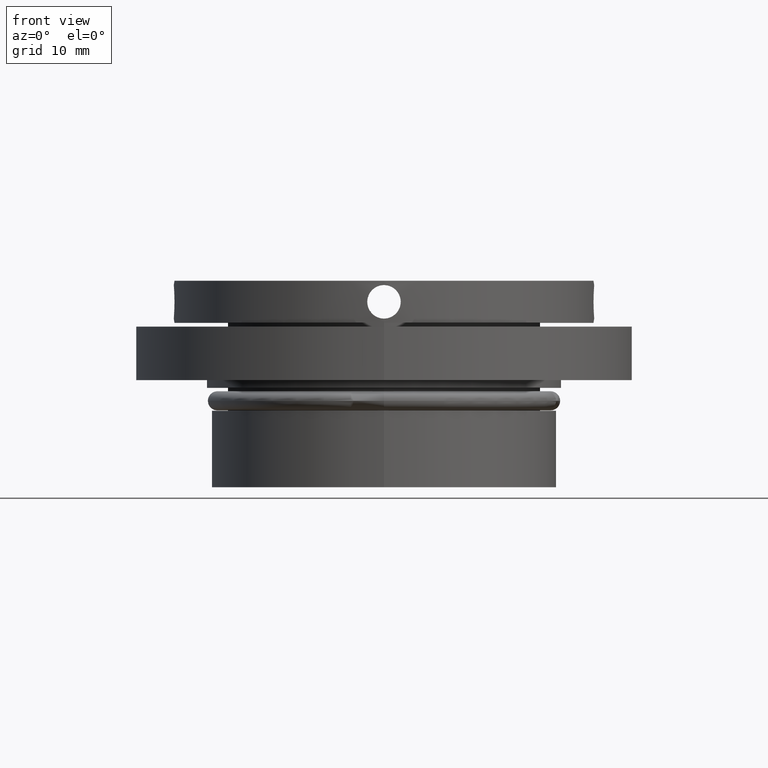
[diagram: clean part render]
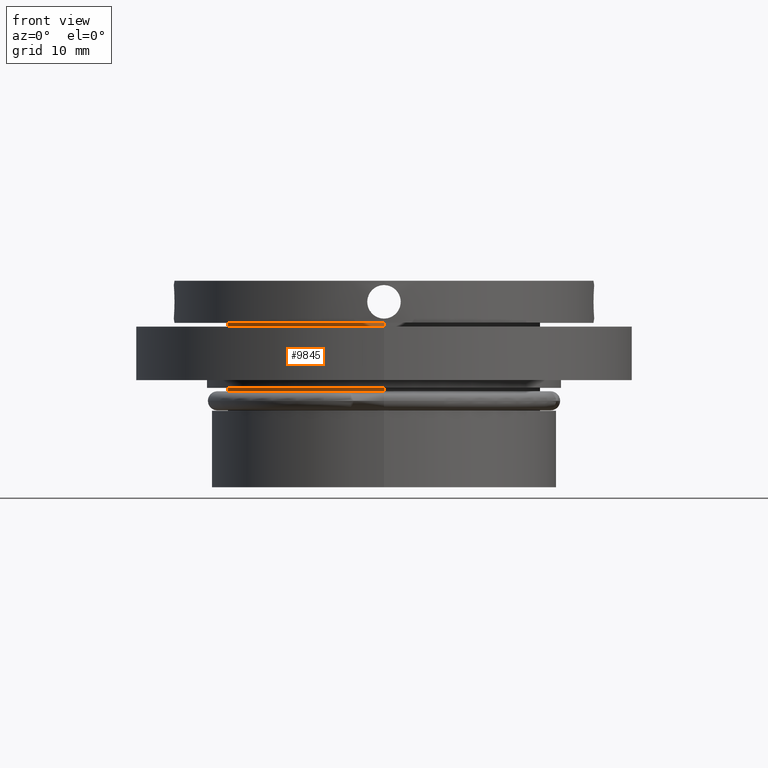
[diagram: same view with one face highlighted and labeled with its STEP entity id]
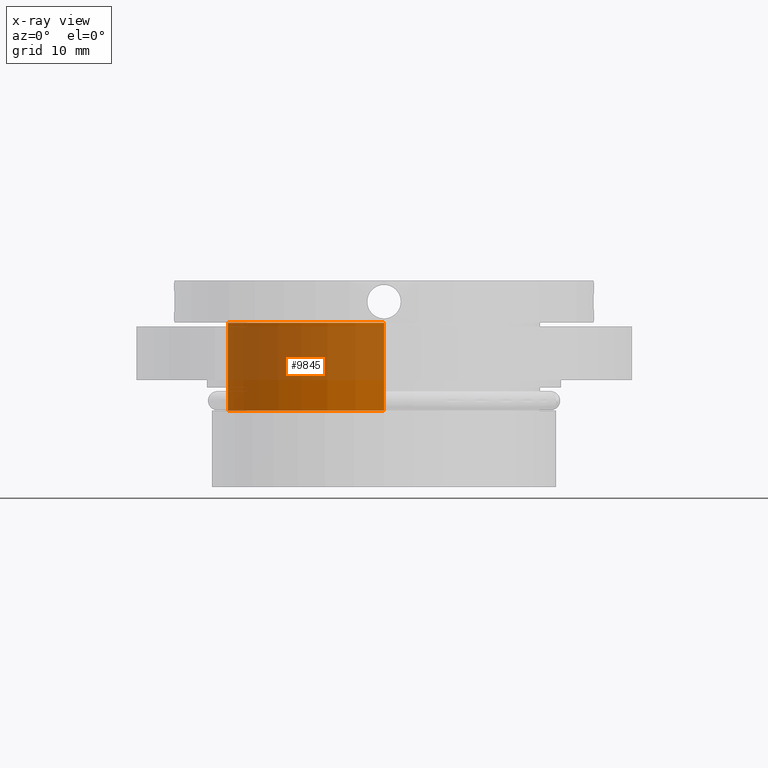
[diagram: x-ray of the same camera — body ghosted, the highlighted face saturated]
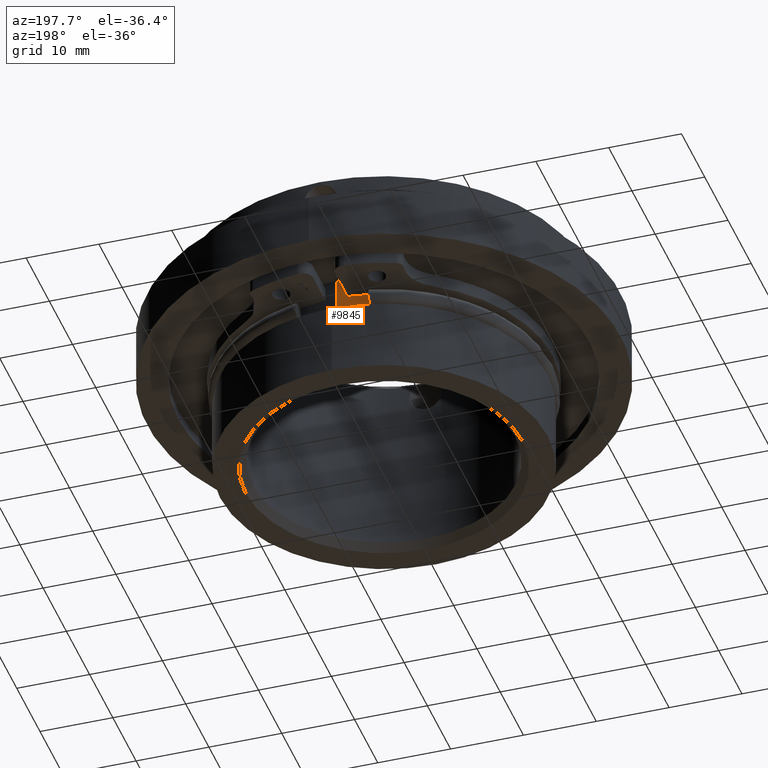
[diagram: same view with one face highlighted and labeled with its STEP entity id]
A machine part, front view. The second image highlights one B-rep face of the part: STEP entity #9845.
The next image is the same camera in x-ray: the body ghosted, the highlighted face saturated — about 61% of this face is hidden behind the body in this view.
A second angle (auxiliary view) of the same face is appended — the face is thin or edge-on in the first view.
In plain terms, the highlighted cylindrical surface (partial cylindrical patch) has radius 20.5 mm, axis along (-0, -0, 1).
Its self-contained STEP definition (entity closure, byte-faithful):
#35 = DIRECTION ( 'NONE',  ( -0.000000000000000000, -1.836970198721029441E-16, 1.000000000000000000 ) ) ;
#347 = LINE ( 'NONE', #8378, #5253 ) ;
#1794 = DIRECTION ( 'NONE',  ( -0.000000000000000000, -1.836970198721029441E-16, 1.000000000000000000 ) ) ;
#1823 = AXIS2_PLACEMENT_3D ( 'NONE', #12870, #3321, #16914 ) ;
#2543 = ORIENTED_EDGE ( 'NONE', *, *, #3777, .F. ) ;
#2576 = VERTEX_POINT ( 'NONE', #10151 ) ;
#2688 = ORIENTED_EDGE ( 'NONE', *, *, #11420, .T. ) ;
#2930 = DIRECTION ( 'NONE',  ( 0.000000000000000000, -1.000000000000000000, -1.903964790706251346E-16 ) ) ;
#3321 = DIRECTION ( 'NONE',  ( -0.000000000000000000, -1.836970198721029441E-16, 1.000000000000000000 ) ) ;
#3777 = EDGE_CURVE ( 'NONE', #11826, #4621, #9024, .T. ) ;
#4621 = VERTEX_POINT ( 'NONE', #9205 ) ;
#5253 = VECTOR ( 'NONE', #1794, 1000.000000000000000 ) ;
#5596 = CARTESIAN_POINT ( 'NONE',  ( 0.000000000000000000, -1.836970198721029194E-15, -3.500000000000001332 ) ) ;
#7364 = EDGE_LOOP ( 'NONE', ( #2543, #8035, #2688, #9957 ) ) ;
#8035 = ORIENTED_EDGE ( 'NONE', *, *, #12935, .T. ) ;
#8153 = AXIS2_PLACEMENT_3D ( 'NONE', #12364, #13837, #13728 ) ;
#8378 = CARTESIAN_POINT ( 'NONE',  ( 0.000000000000000000, -20.50000000000001066, 13.49999999999999645 ) ) ;
#9024 = LINE ( 'NONE', #14192, #14492 ) ;
#9205 = CARTESIAN_POINT ( 'NONE',  ( 2.510525938252074876E-15, 20.50000000000000355, 8.000000000000003553 ) ) ;
#9603 = AXIS2_PLACEMENT_3D ( 'NONE', #5596, #35, #2930 ) ;
#9845 = ADVANCED_FACE ( 'NONE', ( #12611 ), #14082, .T. ) ;
#9957 = ORIENTED_EDGE ( 'NONE', *, *, #12128, .F. ) ;
#10151 = CARTESIAN_POINT ( 'NONE',  ( 0.000000000000000000, -20.50000000000000711, -3.500000000000005329 ) ) ;
#10159 = CARTESIAN_POINT ( 'NONE',  ( 0.000000000000000000, -20.50000000000001066, 7.999999999999996447 ) ) ;
#10697 = CIRCLE ( 'NONE', #8153, 20.50000000000000711 ) ;
#11420 = EDGE_CURVE ( 'NONE', #2576, #15132, #347, .T. ) ;
#11826 = VERTEX_POINT ( 'NONE', #13914 ) ;
#12128 = EDGE_CURVE ( 'NONE', #4621, #15132, #10697, .T. ) ;
#12329 = CIRCLE ( 'NONE', #9603, 20.50000000000000355 ) ;
#12364 = CARTESIAN_POINT ( 'NONE',  ( 0.000000000000000000, -3.949485927250213261E-15, 8.000000000000000000 ) ) ;
#12611 = FACE_OUTER_BOUND ( 'NONE', #7364, .T. ) ;
#12870 = CARTESIAN_POINT ( 'NONE',  ( 0.000000000000000000, -4.959819536546779811E-15, 13.50000000000000000 ) ) ;
#12935 = EDGE_CURVE ( 'NONE', #11826, #2576, #12329, .T. ) ;
#13728 = DIRECTION ( 'NONE',  ( 0.000000000000000000, -1.000000000000000000, -1.692413147294445477E-16 ) ) ;
#13837 = DIRECTION ( 'NONE',  ( -0.000000000000000000, -1.836970198721029441E-16, 1.000000000000000000 ) ) ;
#13914 = CARTESIAN_POINT ( 'NONE',  ( 2.510525938252074481E-15, 20.50000000000000000, -3.499999999999997335 ) ) ;
#14082 = CYLINDRICAL_SURFACE ( 'NONE', #1823, 20.50000000000000711 ) ;
#14192 = CARTESIAN_POINT ( 'NONE',  ( 2.510525938252074876E-15, 20.50000000000000355, 13.50000000000000355 ) ) ;
#14492 = VECTOR ( 'NONE', #15705, 1000.000000000000000 ) ;
#15132 = VERTEX_POINT ( 'NONE', #10159 ) ;
#15705 = DIRECTION ( 'NONE',  ( -0.000000000000000000, -1.836970198721029441E-16, 1.000000000000000000 ) ) ;
#16914 = DIRECTION ( 'NONE',  ( 0.000000000000000000, -1.000000000000000000, -1.692413147294445477E-16 ) ) ;